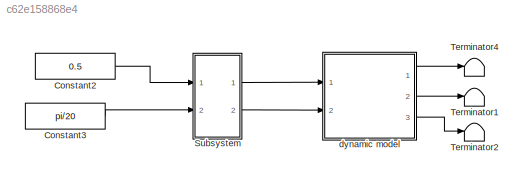
MODEL slx_c62e158868e4
KIND model
BLOCK [Constant] Constant2
  Value = 0.5
BLOCK [Constant] Constant3
  Value = pi/20
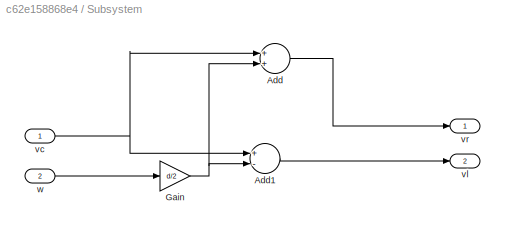
BLOCK [SubSystem] Subsystem
  Ports = [2, 2]
  RequestExecContextInheritance = off
BLOCK [Sum] Subsystem/Add
  InputSameDT = off
  OutDataTypeStr = Inherit: Inherit via internal rule
  Ports = [2, 1]
  SaturateOnIntegerOverflow = off
BLOCK [Sum] Subsystem/Add1
  InputSameDT = off
  Inputs = +-
  OutDataTypeStr = Inherit: Inherit via internal rule
  Ports = [2, 1]
  SaturateOnIntegerOverflow = off
BLOCK [Gain] Subsystem/Gain
  Gain = d/2
  OutDataTypeStr = Inherit: Inherit via internal rule
  ParamDataTypeStr = Inherit: Inherit via internal rule
  SaturateOnIntegerOverflow = off
BLOCK [Inport] Subsystem/vc
  IconDisplay = Port number
BLOCK [Outport] Subsystem/vl
  IconDisplay = Port number
  Port = 2
BLOCK [Outport] Subsystem/vr
  IconDisplay = Port number
BLOCK [Inport] Subsystem/w
  IconDisplay = Port number
  Port = 2
BLOCK [Terminator] Terminator1
BLOCK [Terminator] Terminator2
BLOCK [Terminator] Terminator4
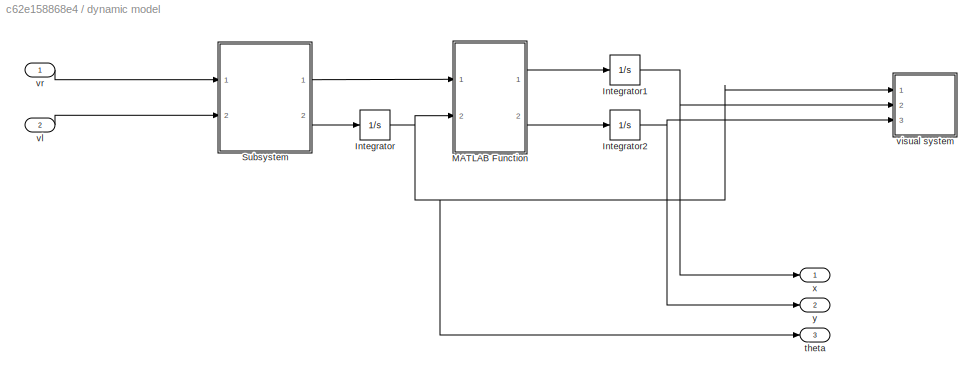
BLOCK [SubSystem] dynamic model
  Ports = [2, 3]
  RequestExecContextInheritance = off
BLOCK [Integrator] dynamic model/Integrator
  Ports = [1, 1]
BLOCK [Integrator] dynamic model/Integrator1
  Ports = [1, 1]
BLOCK [Integrator] dynamic model/Integrator2
  Ports = [1, 1]
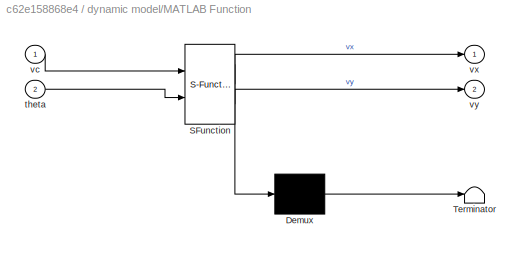
BLOCK [SubSystem] dynamic model/MATLAB Function
  ErrorFcn = Stateflow.Translate.translate
  PermitHierarchicalResolution = ExplicitOnly
  Ports = [2, 2]
  RequestExecContextInheritance = off
  SFBlockType = MATLAB Function
  TreatAsAtomicUnit = on
BLOCK [Demux] dynamic model/MATLAB Function/ Demux 
  Outputs = 1
  Ports = [1, 1]
BLOCK [S-Function] dynamic model/MATLAB Function/ SFunction 
  EnableBusSupport = on
  FunctionName = sf_sfun
  PortCounts = [2 3]
  Ports = [2, 3]
  Tag = Stateflow S-Function backup 2
BLOCK [Terminator] dynamic model/MATLAB Function/ Terminator 
BLOCK [Inport] dynamic model/MATLAB Function/theta
  IconDisplay = Port number
  Port = 2
BLOCK [Inport] dynamic model/MATLAB Function/vc
  IconDisplay = Port number
BLOCK [Outport] dynamic model/MATLAB Function/vx
  IconDisplay = Port number
BLOCK [Outport] dynamic model/MATLAB Function/vy
  IconDisplay = Port number
  Port = 2
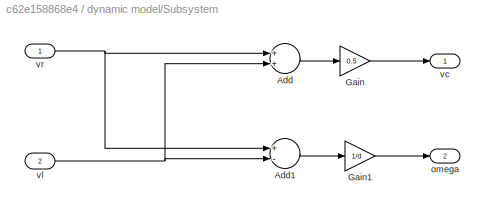
BLOCK [SubSystem] dynamic model/Subsystem
  Ports = [2, 2]
  RequestExecContextInheritance = off
BLOCK [Sum] dynamic model/Subsystem/Add
  InputSameDT = off
  OutDataTypeStr = Inherit: Inherit via internal rule
  Ports = [2, 1]
  SaturateOnIntegerOverflow = off
BLOCK [Sum] dynamic model/Subsystem/Add1
  InputSameDT = off
  Inputs = +-
  OutDataTypeStr = Inherit: Inherit via internal rule
  Ports = [2, 1]
  SaturateOnIntegerOverflow = off
BLOCK [Gain] dynamic model/Subsystem/Gain
  Gain = 0.5
  OutDataTypeStr = Inherit: Inherit via internal rule
  ParamDataTypeStr = Inherit: Inherit via internal rule
  SaturateOnIntegerOverflow = off
BLOCK [Gain] dynamic model/Subsystem/Gain1
  Gain = 1/d
  OutDataTypeStr = Inherit: Inherit via internal rule
  ParamDataTypeStr = Inherit: Inherit via internal rule
  SaturateOnIntegerOverflow = off
BLOCK [Outport] dynamic model/Subsystem/omega
  IconDisplay = Port number
  Port = 2
BLOCK [Outport] dynamic model/Subsystem/vc
  IconDisplay = Port number
BLOCK [Inport] dynamic model/Subsystem/vl
  IconDisplay = Port number
  Port = 2
BLOCK [Inport] dynamic model/Subsystem/vr
  IconDisplay = Port number
BLOCK [Outport] dynamic model/theta
  IconDisplay = Port number
  Port = 3
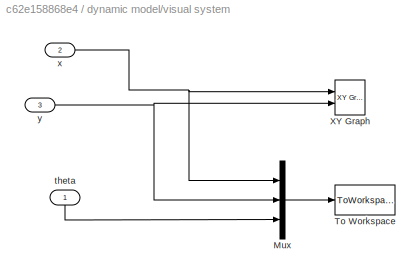
BLOCK [SubSystem] dynamic model/visual system
  Ports = [3]
  RequestExecContextInheritance = off
BLOCK [Mux] dynamic model/visual system/Mux
  DisplayOption = bar
  Inputs = 3
  Ports = [3, 1]
BLOCK [ToWorkspace] dynamic model/visual system/To Workspace
  FixptAsFi = on
  MaxDataPoints = inf
  Ports = [1]
  SampleTime = -1
  Save2DSignal = 3-D array (concatenate along third dimension)
  SaveFormat = Structure With Time
  VariableName = real_trajory
BLOCK [Reference] dynamic model/visual system/XY Graph  REF=simulink/Sinks/XY Graph
  Ports = [2]
  SourceBlock = simulink/Sinks/XY Graph
  SourceType = XY scope.
  st = -1
  xmax = 10
  xmin = -10
  ymax = 10
  ymin = -10
BLOCK [Inport] dynamic model/visual system/theta
  IconDisplay = Port number
BLOCK [Inport] dynamic model/visual system/x
  IconDisplay = Port number
  Port = 2
BLOCK [Inport] dynamic model/visual system/y
  IconDisplay = Port number
  Port = 3
BLOCK [Inport] dynamic model/vl
  IconDisplay = Port number
  Port = 2
BLOCK [Inport] dynamic model/vr
  IconDisplay = Port number
BLOCK [Outport] dynamic model/x
  IconDisplay = Port number
BLOCK [Outport] dynamic model/y
  IconDisplay = Port number
  Port = 2
LINE Constant2:1 -> Subsystem:1
LINE Constant3:1 -> Subsystem:2
LINE Subsystem/Add1:1 -> Subsystem/vl:1
LINE Subsystem/Add:1 -> Subsystem/vr:1
NET Subsystem/Gain:1 -> Subsystem/Add1:2, Subsystem/Add:2
NET Subsystem/vc:1 -> Subsystem/Add1:1, Subsystem/Add:1
LINE Subsystem/w:1 -> Subsystem/Gain:1
LINE Subsystem:1 -> dynamic model:1
LINE Subsystem:2 -> dynamic model:2
NET dynamic model/Integrator1:1 -> dynamic model/visual system:2, dynamic model/x:1
NET dynamic model/Integrator2:1 -> dynamic model/visual system:3, dynamic model/y:1
NET dynamic model/Integrator:1 -> dynamic model/MATLAB Function:2, dynamic model/theta:1, dynamic model/visual system:1
LINE dynamic model/MATLAB Function:1 -> dynamic model/Integrator1:1
LINE dynamic model/MATLAB Function:2 -> dynamic model/Integrator2:1
LINE dynamic model/Subsystem/Add1:1 -> dynamic model/Subsystem/Gain1:1
LINE dynamic model/Subsystem/Add:1 -> dynamic model/Subsystem/Gain:1
LINE dynamic model/Subsystem/Gain1:1 -> dynamic model/Subsystem/omega:1
LINE dynamic model/Subsystem/Gain:1 -> dynamic model/Subsystem/vc:1
NET dynamic model/Subsystem/vl:1 -> dynamic model/Subsystem/Add1:2, dynamic model/Subsystem/Add:2
NET dynamic model/Subsystem/vr:1 -> dynamic model/Subsystem/Add1:1, dynamic model/Subsystem/Add:1
LINE dynamic model/Subsystem:1 -> dynamic model/MATLAB Function:1
LINE dynamic model/Subsystem:2 -> dynamic model/Integrator:1
LINE dynamic model/visual system/Mux:1 -> dynamic model/visual system/To Workspace:1
LINE dynamic model/visual system/theta:1 -> dynamic model/visual system/Mux:3
NET dynamic model/visual system/x:1 -> dynamic model/visual system/Mux:1, dynamic model/visual system/XY Graph:1
NET dynamic model/visual system/y:1 -> dynamic model/visual system/Mux:2, dynamic model/visual system/XY Graph:2
LINE dynamic model/vl:1 -> dynamic model/Subsystem:2
LINE dynamic model/vr:1 -> dynamic model/Subsystem:1
LINE dynamic model:1 -> Terminator4:1
LINE dynamic model:2 -> Terminator1:1
LINE dynamic model:3 -> Terminator2:1
note: NET lines group one-source signal fan-out (src -> all destinations, sorted); 1:1 wires keep LINE
